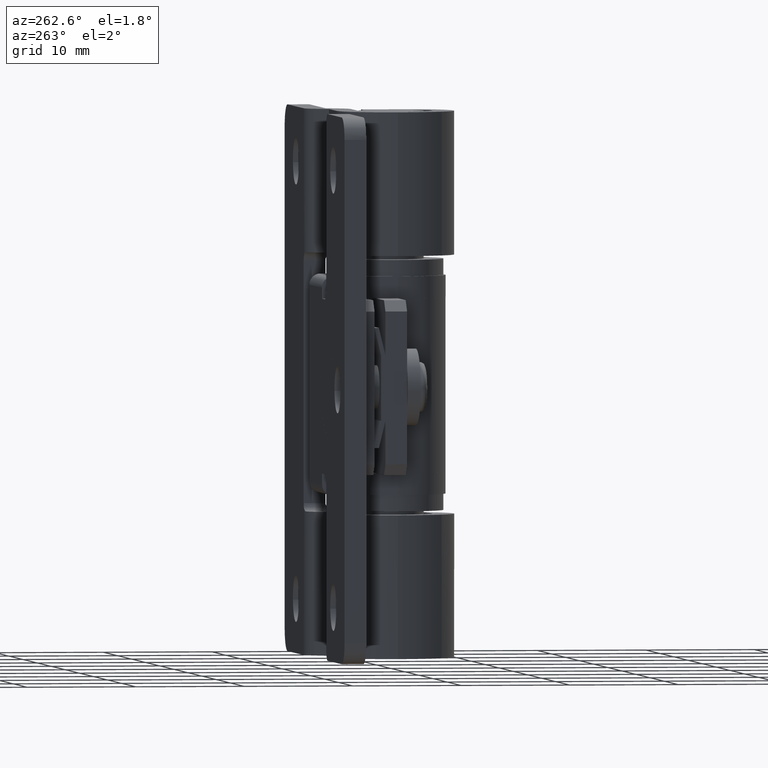
[diagram: clean part render]
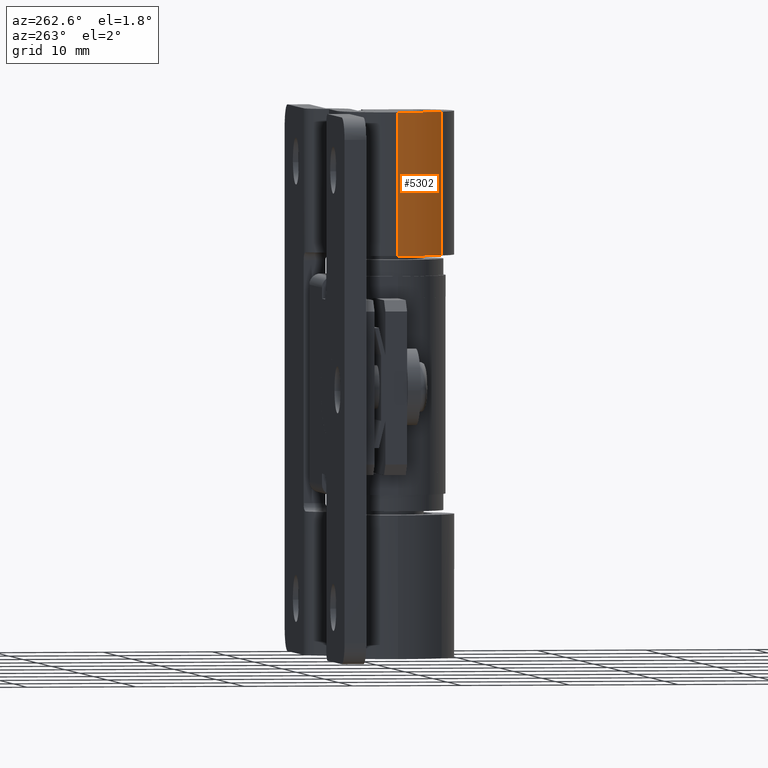
[diagram: same view with one face highlighted and labeled with its STEP entity id]
A machine part, auxiliary view. The second image highlights one B-rep face of the part: STEP entity #5302.
In plain terms, the highlighted face is a freeform B-spline surface patch.
Its self-contained STEP definition (entity closure, byte-faithful):
#4107=CARTESIAN_POINT('',(-3.428838078900190,-4.228837874641680,36.850000000000001));
#4108=VERTEX_POINT('',#4107);
#4124=CARTESIAN_POINT('',(-4.999999999999890,-7.931303E-016,36.850000000000001));
#4125=VERTEX_POINT('',#4124);
#4126=CARTESIAN_POINT('',(-3.428838078900190,-4.228837874641680,36.850000000000001));
#4127=CARTESIAN_POINT('',(-4.999999999999888,-2.406289878639777,36.850000000000001));
#4128=CARTESIAN_POINT('',(-4.999999999999888,0.0,36.850000000000001));
#4136=(BOUNDED_CURVE()B_SPLINE_CURVE(2,(#4126,#4127,#4128),.UNSPECIFIED.,.F.,.U.)CURVE()GEOMETRIC_REPRESENTATION_ITEM()QUASI_UNIFORM_CURVE()RATIONAL_B_SPLINE_CURVE((1.0,0.937392652814265,1.0))REPRESENTATION_ITEM(''));
#4137=EDGE_CURVE('',#4108,#4125,#4136,.T.);
#4427=CARTESIAN_POINT('',(-4.999999999999890,-7.931303E-016,50.0));
#4428=VERTEX_POINT('',#4427);
#4442=CARTESIAN_POINT('',(-3.428838078900190,-4.228837874641680,50.0));
#4443=VERTEX_POINT('',#4442);
#4444=CARTESIAN_POINT('',(-3.428838078900190,-4.228837874641680,50.0));
#4445=CARTESIAN_POINT('',(-4.999999999999888,-2.406289878639777,50.0));
#4446=CARTESIAN_POINT('',(-4.999999999999888,0.0,50.0));
#4454=(BOUNDED_CURVE()B_SPLINE_CURVE(2,(#4444,#4445,#4446),.UNSPECIFIED.,.F.,.U.)CURVE()GEOMETRIC_REPRESENTATION_ITEM()QUASI_UNIFORM_CURVE()RATIONAL_B_SPLINE_CURVE((1.0,0.937392652814265,1.0))REPRESENTATION_ITEM(''));
#4455=EDGE_CURVE('',#4443,#4428,#4454,.T.);
#5268=CARTESIAN_POINT('',(-4.999999999999890,-7.931303E-016,50.0));
#5269=CARTESIAN_POINT('',(-4.999999999999890,-7.931303E-016,36.850000000000001));
#5270=QUASI_UNIFORM_CURVE('',1,(#5268,#5269),.UNSPECIFIED.,.F.,.U.);
#5271=EDGE_CURVE('',#4428,#4125,#5270,.T.);
#5278=CARTESIAN_POINT('',(-4.997026027942562,0.196249060161678,50.328750000000007));
#5279=CARTESIAN_POINT('',(-4.997026027942562,0.196249060161678,36.513031249999997));
#5280=CARTESIAN_POINT('',(-5.077305826436317,-2.451929313463039,50.328750000000014));
#5281=CARTESIAN_POINT('',(-5.077305826436317,-2.451929313463039,36.513031249999997));
#5282=CARTESIAN_POINT('',(-3.278565327588054,-4.397135256900124,50.328749999999992));
#5283=CARTESIAN_POINT('',(-3.278565327588054,-4.397135256900124,36.513031249999997));
#5291=(BOUNDED_SURFACE()B_SPLINE_SURFACE(1,2,((#5278,#5280,#5282),(#5279,#5281,#5283)),.UNSPECIFIED.,.F.,.F.,.U.)B_SPLINE_SURFACE_WITH_KNOTS((2,2),(3,3),(0.0,13.815718750000009),(0.0,5.093901337186063),.UNSPECIFIED.)GEOMETRIC_REPRESENTATION_ITEM()RATIONAL_B_SPLINE_SURFACE(((1.0,0.921585183320963,0.991443551823179),(1.0,0.921585183320963,0.991443551823179)))REPRESENTATION_ITEM('')SURFACE());
#5292=ORIENTED_EDGE('',*,*,#4137,.F.);
#5293=CARTESIAN_POINT('',(-3.428838078900190,-4.228837874641680,50.0));
#5294=CARTESIAN_POINT('',(-3.428838078900190,-4.228837874641680,36.850000000000001));
#5295=QUASI_UNIFORM_CURVE('',1,(#5293,#5294),.UNSPECIFIED.,.F.,.U.);
#5296=EDGE_CURVE('',#4443,#4108,#5295,.T.);
#5297=ORIENTED_EDGE('',*,*,#5296,.F.);
#5298=ORIENTED_EDGE('',*,*,#4455,.T.);
#5299=ORIENTED_EDGE('',*,*,#5271,.T.);
#5300=EDGE_LOOP('',(#5292,#5297,#5298,#5299));
#5301=FACE_OUTER_BOUND('',#5300,.T.);
#5302=ADVANCED_FACE('',(#5301),#5291,.T.);